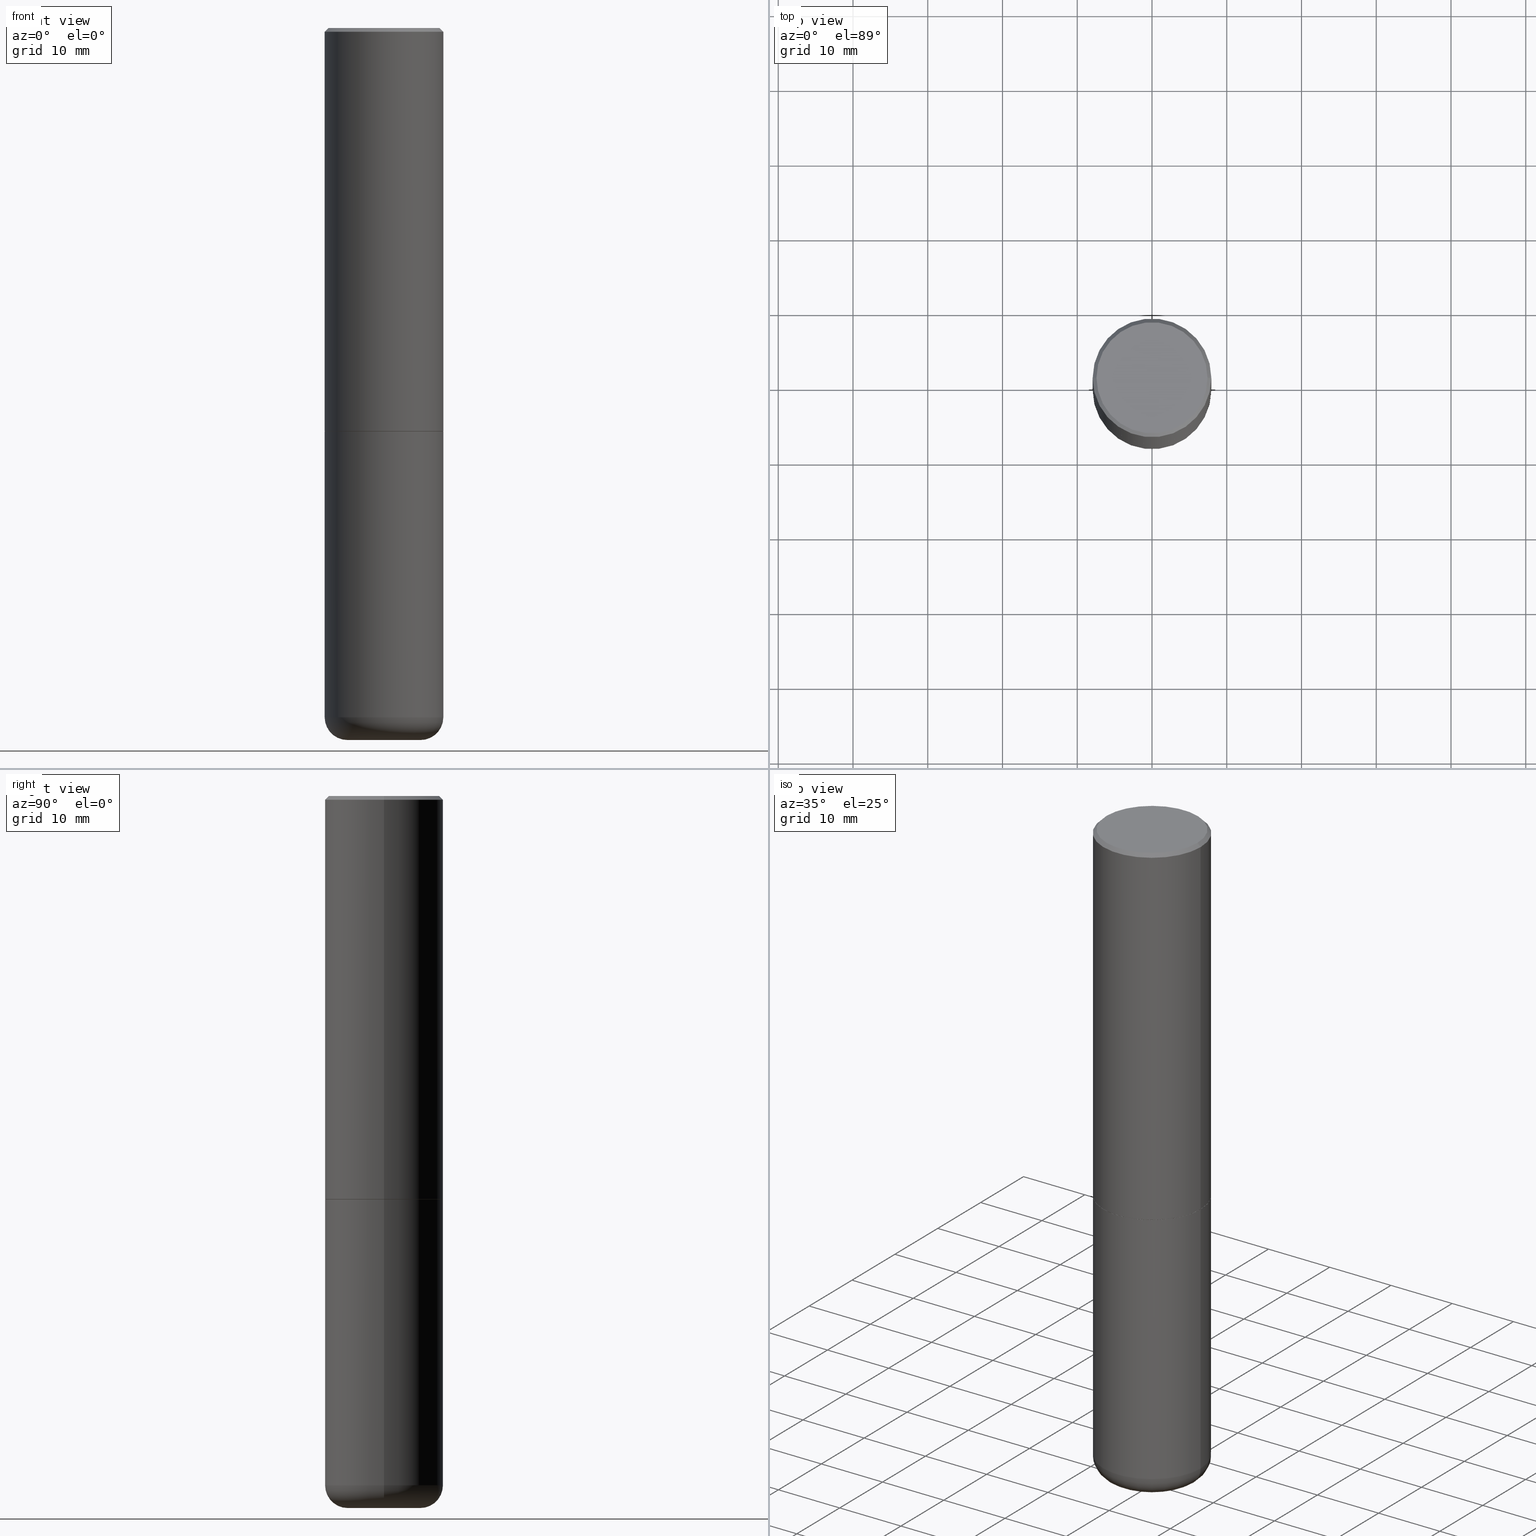
[diagram: canonical four-view strip — front | top / right | iso, engineering-drawing reading convention]
A machine part, canonical four-view strip (front | top / right | iso — engineering-drawing reading convention). The complete STEP part file that produces these views, byte-faithful:
ISO-10303-21;
HEADER;
FILE_DESCRIPTION (( 'STEP AP203' ),
    '1' );
FILE_NAME ('35626.STEP',
    '2022-11-02T20:30:22',
    ( '' ),
    ( '' ),
    'SwSTEP 2.0',
    'SolidWorks 2022',
    '' );
FILE_SCHEMA (( 'CONFIG_CONTROL_DESIGN' ));
ENDSEC;

DATA;
#1 = ORIENTED_EDGE ( 'NONE', *, *, #451, .T. ) ;
#2 = ORIENTED_EDGE ( 'NONE', *, *, #420, .T. ) ;
#3 = CARTESIAN_POINT ( 'NONE',  ( 5.196621213143415268E-29, -7.419397845041685201E-15, -2.125000000000000000 ) ) ;
#4 = AXIS2_PLACEMENT_3D ( 'NONE', #116, #432, #165 ) ;
#5 = ORIENTED_EDGE ( 'NONE', *, *, #96, .T. ) ;
#6 = CIRCLE ( 'NONE', #4, 0.3125000000000000000 ) ;
#7 = APPLICATION_CONTEXT ( 'configuration controlled 3d designs of mechanical parts and assemblies' ) ;
#8 = CARTESIAN_POINT ( 'NONE',  ( 0.000000000000000000, 0.000000000000000000, 0.000000000000000000 ) ) ;
#9 = ORIENTED_EDGE ( 'NONE', *, *, #34, .F. ) ;
#10 = CARTESIAN_POINT ( 'NONE',  ( -0.3125000000000000000, -7.826299479965492348E-15, -2.125000000000000000 ) ) ;
#11 = PLANE ( 'NONE',  #441 ) ;
#12 = CARTESIAN_POINT ( 'NONE',  ( -0.3114999999999999991, -5.206057223148971551E-15, -2.125000000000000000 ) ) ;
#13 = DIRECTION ( 'NONE',  ( -2.445468806185136877E-29, 3.491481338843145188E-15, 1.000000000000000000 ) ) ;
#14 = CARTESIAN_POINT ( 'NONE',  ( 9.169796691556669911E-29, -1.309203942760573274E-14, -3.749709122587949750 ) ) ;
#15 = DIRECTION ( 'NONE',  ( 1.000000000000000000, -6.982962677686266711E-15, 0.000000000000000000 ) ) ;
#16 = EDGE_CURVE ( 'NONE', #28, #37, #324, .T. ) ;
#17 = CARTESIAN_POINT ( 'NONE',  ( 4.890937612370311694E-31, -6.982962677686347076E-17, -0.02000000000000015654 ) ) ;
#18 = ORIENTED_EDGE ( 'NONE', *, *, #85, .T. ) ;
#19 = DIRECTION ( 'NONE',  ( 2.445468806185136597E-29, -3.491481338843145583E-15, -1.000000000000000000 ) ) ;
#20 = CARTESIAN_POINT ( 'NONE',  ( 0.1914528157401960418, -1.442996288751353268E-14, -3.750000000000000000 ) ) ;
#21 = DIRECTION ( 'NONE',  ( -1.000000000000000000, 6.982962677686265922E-15, -4.876176775795935793E-29 ) ) ;
#22 = ADVANCED_FACE ( 'NONE', ( #344 ), #481, .T. ) ;
#23 = CARTESIAN_POINT ( 'NONE',  ( -0.3125000000000000000, -1.522421945989534932E-15, -2.124000000000000110 ) ) ;
#24 = AXIS2_PLACEMENT_3D ( 'NONE', #81, #86, #241 ) ;
#25 = CIRCLE ( 'NONE', #366, 0.1581215657401959795 ) ;
#26 = DIRECTION ( 'NONE',  ( -0.7071067811865481278, 2.468850131082263371E-15, -0.7071067811865469066 ) ) ;
#27 = PERSON_AND_ORGANIZATION ( #110, #402 ) ;
#28 = VERTEX_POINT ( 'NONE', #473 ) ;
#29 = FACE_OUTER_BOUND ( 'NONE', #123, .T. ) ;
#30 = CALENDAR_DATE ( 2022, 2, 11 ) ;
#31 = DIRECTION ( 'NONE',  ( -2.445468806185136597E-29, 3.491481338843145583E-15, 1.000000000000000000 ) ) ;
#32 = ORIENTED_EDGE ( 'NONE', *, *, #57, .F. ) ;
#33 = AXIS2_PLACEMENT_3D ( 'NONE', #367, #31, #476 ) ;
#34 = EDGE_CURVE ( 'NONE', #37, #28, #384, .T. ) ;
#35 = LINE ( 'NONE', #154, #348 ) ;
#36 = ORIENTED_EDGE ( 'NONE', *, *, #420, .F. ) ;
#37 = VERTEX_POINT ( 'NONE', #108 ) ;
#38 = DIRECTION ( 'NONE',  ( -2.445468806185136597E-29, 3.491481338843145583E-15, 1.000000000000000000 ) ) ;
#39 = ORIENTED_EDGE ( 'NONE', *, *, #109, .F. ) ;
#40 = FACE_OUTER_BOUND ( 'NONE', #365, .T. ) ;
#41 = DIRECTION ( 'NONE',  ( -2.445468806185136597E-29, 3.491481338843145583E-15, 1.000000000000000000 ) ) ;
#42 = ORIENTED_EDGE ( 'NONE', *, *, #72, .T. ) ;
#43 = CARTESIAN_POINT ( 'NONE',  ( 0.3125000000000000000, -9.598082200479800541E-15, -2.124000000000000110 ) ) ;
#44 = DIRECTION ( 'NONE',  ( -2.445468806185136597E-29, 3.491481338843145583E-15, 1.000000000000000000 ) ) ;
#45 = FACE_OUTER_BOUND ( 'NONE', #342, .T. ) ;
#46 = PRODUCT_DEFINITION ( 'UNKNOWN', '', #58, #76 ) ;
#47 = FACE_OUTER_BOUND ( 'NONE', #382, .T. ) ;
#48 = CIRCLE ( 'NONE', #416, 0.3125000000000000000 ) ;
#49 = CONICAL_SURFACE ( 'NONE', #114, 0.3114999999999999991, 0.7853981633974141952 ) ;
#50 = CARTESIAN_POINT ( 'NONE',  ( 5.196621213143415268E-29, -7.419397845041685201E-15, -2.125000000000000000 ) ) ;
#51 = LOCAL_TIME ( 16, 30, 22.00000000000000000, #264 ) ;
#52 = ADVANCED_FACE ( 'NONE', ( #29 ), #299, .T. ) ;
#53 = CARTESIAN_POINT ( 'NONE',  ( 0.000000000000000000, 0.000000000000000000, 0.000000000000000000 ) ) ;
#54 = LINE ( 'NONE', #181, #147 ) ;
#55 = DIRECTION ( 'NONE',  ( 0.9999619230641714207, -6.890705306874796929E-15, -0.008726535498360797616 ) ) ;
#56 = LINE ( 'NONE', #254, #125 ) ;
#57 = EDGE_CURVE ( 'NONE', #449, #225, #48, .T. ) ;
#58 = PRODUCT_DEFINITION_FORMATION_WITH_SPECIFIED_SOURCE ( 'ANY', '', #111, .NOT_KNOWN. ) ;
#59 = DIRECTION ( 'NONE',  ( 1.000000000000000000, -6.982962677686265133E-15, 0.000000000000000000 ) ) ;
#60 = CARTESIAN_POINT ( 'NONE',  ( 9.170508023194262238E-29, -1.309305502066179741E-14, -3.750000000000000000 ) ) ;
#61 = LINE ( 'NONE', #226, #93 ) ;
#62 = DIRECTION ( 'NONE',  ( -2.445468806185136597E-29, 3.491481338843145583E-15, 1.000000000000000000 ) ) ;
#63 = AXIS2_PLACEMENT_3D ( 'NONE', #113, #448, #136 ) ;
#64 = APPROVAL_ROLE ( '' ) ;
#65 = AXIS2_PLACEMENT_3D ( 'NONE', #284, #375, #381 ) ;
#66 = EDGE_CURVE ( 'NONE', #491, #373, #294, .T. ) ;
#67 = PERSON_AND_ORGANIZATION ( #110, #402 ) ;
#68 = DATE_AND_TIME ( #306, #387 ) ;
#69 = EDGE_LOOP ( 'NONE', ( #463, #390, #371, #36 ) ) ;
#70 = DATE_TIME_ROLE ( 'classification_date' ) ;
#71 = ORIENTED_EDGE ( 'NONE', *, *, #16, .T. ) ;
#72 = EDGE_CURVE ( 'NONE', #373, #87, #195, .T. ) ;
#73 = AXIS2_PLACEMENT_3D ( 'NONE', #363, #132, #442 ) ;
#74 = AXIS2_PLACEMENT_3D ( 'NONE', #295, #234, #121 ) ;
#75 = COORDINATED_UNIVERSAL_TIME_OFFSET ( 5, 0, .BEHIND. ) ;
#76 = DESIGN_CONTEXT ( 'detailed design', #395, 'design' ) ;
#77 = ORIENTED_EDGE ( 'NONE', *, *, #96, .F. ) ;
#78 = DIRECTION ( 'NONE',  ( 7.105427357601001859E-15, 1.000000000000000000, -3.491481338843145583E-15 ) ) ;
#79 = DIRECTION ( 'NONE',  ( 0.7071067811865232589, -2.468850131082003836E-15, 0.7071067811865715536 ) ) ;
#80 = ORIENTED_EDGE ( 'NONE', *, *, #223, .F. ) ;
#81 = CARTESIAN_POINT ( 'NONE',  ( 4.890937612370311694E-31, -6.982962677686347076E-17, -0.02000000000000015654 ) ) ;
#82 = VERTEX_POINT ( 'NONE', #153 ) ;
#83 = LINE ( 'NONE', #240, #411 ) ;
#84 =( GEOMETRIC_REPRESENTATION_CONTEXT ( 3 ) GLOBAL_UNCERTAINTY_ASSIGNED_CONTEXT ( ( #169 ) ) GLOBAL_UNIT_ASSIGNED_CONTEXT ( ( #478, #251, #249 ) ) REPRESENTATION_CONTEXT ( 'NONE', 'WORKASPACE' ) );
#85 = EDGE_CURVE ( 'NONE', #82, #90, #209, .T. ) ;
#86 = DIRECTION ( 'NONE',  ( 2.445468806185136597E-29, -3.491481338843145583E-15, -1.000000000000000000 ) ) ;
#87 = VERTEX_POINT ( 'NONE', #23 ) ;
#88 = ORIENTED_EDGE ( 'NONE', *, *, #288, .F. ) ;
#89 = CARTESIAN_POINT ( 'NONE',  ( 5.196621213143415268E-29, -7.419397845041685201E-15, -2.125000000000000000 ) ) ;
#90 = VERTEX_POINT ( 'NONE', #20 ) ;
#91 = DIRECTION ( 'NONE',  ( -2.445468806185136597E-29, 3.491481338843145583E-15, 1.000000000000000000 ) ) ;
#92 = ADVANCED_FACE ( 'NONE', ( #177 ), #156, .F. ) ;
#93 = VECTOR ( 'NONE', #26, 39.37007874015748143 ) ;
#94 = AXIS2_PLACEMENT_3D ( 'NONE', #236, #355, #401 ) ;
#95 = DIRECTION ( 'NONE',  ( 1.000000000000000000, -6.982962677686269077E-15, 0.000000000000000000 ) ) ;
#96 = EDGE_CURVE ( 'NONE', #87, #185, #227, .T. ) ;
#97 = DIRECTION ( 'NONE',  ( -2.445468806185136597E-29, 3.491481338843145583E-15, 1.000000000000000000 ) ) ;
#98 = CARTESIAN_POINT ( 'NONE',  ( 0.1914528157401960418, -1.440651667971513390E-14, -3.750000000000000000 ) ) ;
#99 = DIRECTION ( 'NONE',  ( -2.445468806185136597E-29, 3.491481338843145583E-15, 1.000000000000000000 ) ) ;
#100 = CC_DESIGN_PERSON_AND_ORGANIZATION_ASSIGNMENT ( #255, #261, ( #46 ) ) ;
#101 = VECTOR ( 'NONE', #168, 39.37007874015747433 ) ;
#102 = DIRECTION ( 'NONE',  ( 0.000000000000000000, 0.000000000000000000, 1.000000000000000000 ) ) ;
#103 = DATE_AND_TIME ( #386, #372 ) ;
#104 = ORIENTED_EDGE ( 'NONE', *, *, #128, .F. ) ;
#105 = APPROVAL_ROLE ( '' ) ;
#106 = ORIENTED_EDGE ( 'NONE', *, *, #34, .T. ) ;
#107 = CIRCLE ( 'NONE', #33, 0.1914528157401960418 ) ;
#108 = CARTESIAN_POINT ( 'NONE',  ( 0.2924999999999989830, -2.110215457714314014E-15, 4.268512490114932791E-18 ) ) ;
#109 = EDGE_CURVE ( 'NONE', #82, #276, #133, .T. ) ;
#110 = PERSON ( 'UNSPECIFIED', 'UNSPECIFIED', 'UNSPECIFIED', ('UNSPECIFIED'), ('UNSPECIFIED'), ('UNSPECIFIED') ) ;
#111 = PRODUCT ( '35626', '35626', '', ( #216 ) ) ;
#112 = CARTESIAN_POINT ( 'NONE',  ( 2.182175836777010017E-15, 0.3124999999999925615, -2.125000000000001332 ) ) ;
#113 = CARTESIAN_POINT ( 'NONE',  ( 5.196621213143415268E-29, -7.419397845041685201E-15, -2.125000000000000000 ) ) ;
#114 = AXIS2_PLACEMENT_3D ( 'NONE', #50, #427, #118 ) ;
#115 = CIRCLE ( 'NONE', #468, 0.3125000000000000000 ) ;
#116 = CARTESIAN_POINT ( 'NONE',  ( 8.877062940367102659E-29, -1.267409321338992723E-14, -3.630004569232299971 ) ) ;
#117 = EDGE_LOOP ( 'NONE', ( #308, #429, #39 ) ) ;
#118 = DIRECTION ( 'NONE',  ( 1.000000000000000000, -6.982962677686269077E-15, 0.000000000000000000 ) ) ;
#119 = ORIENTED_EDGE ( 'NONE', *, *, #72, .F. ) ;
#120 = ORIENTED_EDGE ( 'NONE', *, *, #182, .F. ) ;
#121 = DIRECTION ( 'NONE',  ( 1.000000000000000000, -6.982962677686269077E-15, 0.000000000000000000 ) ) ;
#122 = CYLINDRICAL_SURFACE ( 'NONE', #325, 0.3124999999999996114 ) ;
#123 = EDGE_LOOP ( 'NONE', ( #414, #270, #197, #392 ) ) ;
#124 = CLOSED_SHELL ( 'NONE', ( #472, #167, #292, #336, #92, #137, #52, #208, #405 ) ) ;
#125 = VECTOR ( 'NONE', #408, 39.37007874015747433 ) ;
#126 = ORIENTED_EDGE ( 'NONE', *, *, #305, .T. ) ;
#127 = FACE_OUTER_BOUND ( 'NONE', #388, .T. ) ;
#128 = EDGE_CURVE ( 'NONE', #90, #161, #107, .T. ) ;
#129 = CARTESIAN_POINT ( 'NONE',  ( 0.3114999999999999991, -9.594590719140957534E-15, -2.125000000000000000 ) ) ;
#130 = CYLINDRICAL_SURFACE ( 'NONE', #475, 0.3125000000000000000 ) ;
#131 = CARTESIAN_POINT ( 'NONE',  ( -1.043851414335219820E-46, 1.490343170380447200E-32, 4.268512490100411279E-18 ) ) ;
#132 = DIRECTION ( 'NONE',  ( -2.445468806185136597E-29, 3.491481338843145583E-15, 1.000000000000000000 ) ) ;
#133 = CIRCLE ( 'NONE', #141, 0.1581215657401959795 ) ;
#134 =( LENGTH_UNIT ( ) NAMED_UNIT ( * ) SI_UNIT ( $, .METRE. ) );
#135 = CONICAL_SURFACE ( 'NONE', #349, 0.1914528157401960418, 1.562069680534938110 ) ;
#136 = DIRECTION ( 'NONE',  ( 1.000000000000000000, -6.982962677686265133E-15, 0.000000000000000000 ) ) ;
#137 = ADVANCED_FACE ( 'NONE', ( #253 ), #11, .F. ) ;
#138 = FACE_OUTER_BOUND ( 'NONE', #425, .T. ) ;
#139 = DIRECTION ( 'NONE',  ( 2.445468806185136597E-29, -3.491481338843145583E-15, -1.000000000000000000 ) ) ;
#140 = CARTESIAN_POINT ( 'NONE',  ( 9.170508023194262238E-29, -1.309305502066179741E-14, -3.750000000000000000 ) ) ;
#141 = AXIS2_PLACEMENT_3D ( 'NONE', #443, #62, #377 ) ;
#142 = APPROVAL_DATE_TIME ( #338, #423 ) ;
#143 = ORIENTED_EDGE ( 'NONE', *, *, #220, .T. ) ;
#144 = EDGE_CURVE ( 'NONE', #225, #449, #417, .T. ) ;
#145 = COORDINATED_UNIVERSAL_TIME_OFFSET ( 5, 0, .BEHIND. ) ;
#146 = EDGE_LOOP ( 'NONE', ( #206, #5, #2, #272 ) ) ;
#147 = VECTOR ( 'NONE', #326, 39.37007874015748143 ) ;
#148 = EDGE_CURVE ( 'NONE', #491, #185, #219, .T. ) ;
#149 = DATE_AND_TIME ( #30, #186 ) ;
#150 = EDGE_CURVE ( 'NONE', #276, #82, #25, .T. ) ;
#151 = PRODUCT_DEFINITION_SHAPE ( 'NONE', 'NONE',  #46 ) ;
#152 = EDGE_LOOP ( 'NONE', ( #278, #486, #235, #104 ) ) ;
#153 = CARTESIAN_POINT ( 'NONE',  ( 0.1581215657401959795, -1.417683211277084560E-14, -3.749709122587949750 ) ) ;
#154 = CARTESIAN_POINT ( 'NONE',  ( -0.1914528157401960418, -1.175614715381006215E-14, -3.750000000000000000 ) ) ;
#155 = CARTESIAN_POINT ( 'NONE',  ( -0.1925000000000002265, -1.130629844705173198E-14, -3.630004569232299971 ) ) ;
#156 = CONICAL_SURFACE ( 'NONE', #212, 0.1581215657401959795, 1.535889741755008808 ) ;
#157 = ORIENTED_EDGE ( 'NONE', *, *, #268, .F. ) ;
#158 = LINE ( 'NONE', #393, #244 ) ;
#159 = CC_DESIGN_DATE_AND_TIME_ASSIGNMENT ( #103, #70, ( #304 ) ) ;
#160 = DIRECTION ( 'NONE',  ( -2.445468806185136597E-29, 3.491481338843145583E-15, 1.000000000000000000 ) ) ;
#161 = VERTEX_POINT ( 'NONE', #360 ) ;
#162 = LINE ( 'NONE', #238, #101 ) ;
#163 = CARTESIAN_POINT ( 'NONE',  ( 0.3125000000000000000, -1.485626905016688558E-14, -3.630004569232299971 ) ) ;
#164 = ORIENTED_EDGE ( 'NONE', *, *, #187, .F. ) ;
#165 = DIRECTION ( 'NONE',  ( 1.000000000000000000, -6.982962677686269077E-15, 0.000000000000000000 ) ) ;
#166 = CIRCLE ( 'NONE', #483, 0.3124999999999991673 ) ;
#167 = ADVANCED_FACE ( 'NONE', ( #213 ), #482, .T. ) ;
#168 = DIRECTION ( 'NONE',  ( 0.9993908270190957621, -6.978169709227547010E-15, -0.03489949670250219738 ) ) ;
#169 = UNCERTAINTY_MEASURE_WITH_UNIT (LENGTH_MEASURE( 1.000000000000000082E-05 ), #478, 'distance_accuracy_value', 'NONE');
#170 = APPLICATION_PROTOCOL_DEFINITION ( 'international standard', 'config_control_design', 1994, #7 ) ;
#171 = CARTESIAN_POINT ( 'NONE',  ( 0.3125000000000000000, -9.601573681818641971E-15, -2.125000000000000000 ) ) ;
#172 = DIRECTION ( 'NONE',  ( -2.445468806185136597E-29, 3.491481338843145583E-15, 1.000000000000000000 ) ) ;
#173 = VECTOR ( 'NONE', #55, 39.37007874015748143 ) ;
#174 = EDGE_CURVE ( 'NONE', #276, #161, #35, .T. ) ;
#175 = VECTOR ( 'NONE', #246, 39.37007874015748143 ) ;
#176 = CARTESIAN_POINT ( 'NONE',  ( 5.196621213143415268E-29, -7.419397845041685201E-15, -2.125000000000000000 ) ) ;
#177 = FACE_OUTER_BOUND ( 'NONE', #117, .T. ) ;
#178 = DIRECTION ( 'NONE',  ( 1.000000000000000000, -6.982962677686265133E-15, 0.000000000000000000 ) ) ;
#179 = MANIFOLD_SOLID_BREP ( 'Body-Move/Copy2[1]', #124 ) ;
#180 = DIRECTION ( 'NONE',  ( 1.000000000000000000, -6.982962677686266711E-15, 4.876176775795936353E-29 ) ) ;
#181 = CARTESIAN_POINT ( 'NONE',  ( -0.3124999999999996114, 2.220446049250310320E-15, -1.537167215704655990E-29 ) ) ;
#182 = EDGE_CURVE ( 'NONE', #199, #449, #83, .T. ) ;
#183 = APPROVAL_DATE_TIME ( #68, #439 ) ;
#184 = TOROIDAL_SURFACE ( 'NONE', #267, 0.1925000000000002265, 0.1199999999999997735 ) ;
#185 = VERTEX_POINT ( 'NONE', #43 ) ;
#186 = LOCAL_TIME ( 16, 30, 22.00000000000000000, #75 ) ;
#187 = EDGE_CURVE ( 'NONE', #28, #194, #61, .T. ) ;
#188 = PERSON_AND_ORGANIZATION_ROLE ( 'creator' ) ;
#189 = ORIENTED_EDGE ( 'NONE', *, *, #150, .F. ) ;
#190 = CARTESIAN_POINT ( 'NONE',  ( 5.194175744337230786E-29, -7.415906363702842194E-15, -2.124000000000000110 ) ) ;
#191 = CLOSED_SHELL ( 'NONE', ( #22, #341, #354, #362, #283, #259, #364, #404 ) ) ;
#192 = ORIENTED_EDGE ( 'NONE', *, *, #248, .T. ) ;
#193 = AXIS2_PLACEMENT_3D ( 'NONE', #480, #361, #21 ) ;
#194 = VERTEX_POINT ( 'NONE', #247 ) ;
#195 = LINE ( 'NONE', #12, #368 ) ;
#196 = DIRECTION ( 'NONE',  ( 1.000000000000000000, -6.982962677686266711E-15, 4.876067333457706292E-29 ) ) ;
#197 = ORIENTED_EDGE ( 'NONE', *, *, #182, .T. ) ;
#198 = CC_DESIGN_PERSON_AND_ORGANIZATION_ASSIGNMENT ( #228, #489, ( #111 ) ) ;
#199 = VERTEX_POINT ( 'NONE', #163 ) ;
#200 = FACE_OUTER_BOUND ( 'NONE', #69, .T. ) ;
#201 = AXIS2_PLACEMENT_3D ( 'NONE', #358, #91, #281 ) ;
#202 = DIMENSIONAL_EXPONENTS ( 1.000000000000000000, 0.000000000000000000, 0.000000000000000000, 0.000000000000000000, 0.000000000000000000, 0.000000000000000000, 0.000000000000000000 ) ;
#203 = ORIENTED_EDGE ( 'NONE', *, *, #144, .T. ) ;
#204 = APPROVAL_PERSON_ORGANIZATION ( #300, #316, #105 ) ;
#205 = DIRECTION ( 'NONE',  ( -2.445468806185136597E-29, 3.491481338843145583E-15, 1.000000000000000000 ) ) ;
#206 = ORIENTED_EDGE ( 'NONE', *, *, #479, .F. ) ;
#207 = CARTESIAN_POINT ( 'NONE',  ( 4.890937612370311694E-31, -6.982962677686347076E-17, -0.02000000000000015654 ) ) ;
#208 = ADVANCED_FACE ( 'NONE', ( #428 ), #184, .T. ) ;
#209 = LINE ( 'NONE', #98, #173 ) ;
#210 = DIRECTION ( 'NONE',  ( 1.000000000000000000, -6.982962677686265922E-15, 4.876176775795935793E-29 ) ) ;
#211 = AXIS2_PLACEMENT_3D ( 'NONE', #53, #172, #180 ) ;
#212 = AXIS2_PLACEMENT_3D ( 'NONE', #328, #139, #380 ) ;
#213 = FACE_OUTER_BOUND ( 'NONE', #376, .T. ) ;
#214 = FACE_OUTER_BOUND ( 'NONE', #146, .T. ) ;
#215 = DIRECTION ( 'NONE',  ( 1.000000000000000000, -6.982962677686265133E-15, 0.000000000000000000 ) ) ;
#216 = MECHANICAL_CONTEXT ( 'NONE', #7, 'mechanical' ) ;
#217 = CIRCLE ( 'NONE', #303, 0.1199999999999997735 ) ;
#218 = PLANE ( 'NONE',  #193 ) ;
#219 = LINE ( 'NONE', #129, #330 ) ;
#220 = EDGE_CURVE ( 'NONE', #339, #194, #311, .T. ) ;
#221 = ADVANCED_BREP_SHAPE_REPRESENTATION ( '35626', ( #179, #337, #269 ), #84 ) ;
#222 = DIRECTION ( 'NONE',  ( -1.000000000000000000, 6.982962677686269077E-15, 0.000000000000000000 ) ) ;
#223 = EDGE_CURVE ( 'NONE', #37, #339, #158, .T. ) ;
#224 = DIRECTION ( 'NONE',  ( 1.000000000000000000, 0.000000000000000000, 0.000000000000000000 ) ) ;
#225 = VERTEX_POINT ( 'NONE', #10 ) ;
#226 = CARTESIAN_POINT ( 'NONE',  ( -0.3124999999999991673, 2.112346210000089132E-15, -0.02000000000000015654 ) ) ;
#227 = CIRCLE ( 'NONE', #245, 0.3125000000000000000 ) ;
#228 = PERSON_AND_ORGANIZATION ( #110, #402 ) ;
#229 = VECTOR ( 'NONE', #13, 39.37007874015748143 ) ;
#230 = VERTEX_POINT ( 'NONE', #313 ) ;
#231 = APPROVAL_STATUS ( 'not_yet_approved' ) ;
#232 = DATE_AND_TIME ( #447, #51 ) ;
#233 = ORIENTED_EDGE ( 'NONE', *, *, #128, .T. ) ;
#234 = DIRECTION ( 'NONE',  ( -2.445468806185136597E-29, 3.491481338843145583E-15, 1.000000000000000000 ) ) ;
#235 = ORIENTED_EDGE ( 'NONE', *, *, #174, .T. ) ;
#236 = CARTESIAN_POINT ( 'NONE',  ( 5.196621213143415268E-29, -7.419397845041685201E-15, -2.125000000000000000 ) ) ;
#237 = ORIENTED_EDGE ( 'NONE', *, *, #302, .T. ) ;
#238 = CARTESIAN_POINT ( 'NONE',  ( 0.1581215657401959795, -1.417683211277084560E-14, -3.749709122587949750 ) ) ;
#239 = ORIENTED_EDGE ( 'NONE', *, *, #451, .F. ) ;
#240 = CARTESIAN_POINT ( 'NONE',  ( 0.3125000000000000000, -2.182175836776958347E-15, 1.523805242436230075E-29 ) ) ;
#241 = DIRECTION ( 'NONE',  ( -1.000000000000000000, 6.982962677686267499E-15, 0.000000000000000000 ) ) ;
#242 = DIRECTION ( 'NONE',  ( 1.000000000000000000, -6.982962677686266711E-15, 4.876176775795936353E-29 ) ) ;
#243 = DIRECTION ( 'NONE',  ( 1.000000000000000000, -6.982962677686266711E-15, 4.876176775795935232E-29 ) ) ;
#244 = VECTOR ( 'NONE', #459, 39.37007874015748143 ) ;
#245 = AXIS2_PLACEMENT_3D ( 'NONE', #190, #44, #431 ) ;
#246 = DIRECTION ( 'NONE',  ( -2.445468806185136877E-29, 3.491481338843145188E-15, 1.000000000000000000 ) ) ;
#247 = CARTESIAN_POINT ( 'NONE',  ( -0.3124999999999991673, 2.112346210000089132E-15, -0.02000000000000015654 ) ) ;
#248 = EDGE_CURVE ( 'NONE', #461, #225, #424, .T. ) ;
#249 =( NAMED_UNIT ( * ) SI_UNIT ( $, .STERADIAN. ) SOLID_ANGLE_UNIT ( ) );
#250 = CIRCLE ( 'NONE', #434, 0.3125000000000000000 ) ;
#251 =( NAMED_UNIT ( * ) PLANE_ANGLE_UNIT ( ) SI_UNIT ( $, .RADIAN. ) );
#252 = CC_DESIGN_APPROVAL ( #439, ( #46 ) ) ;
#253 = FACE_OUTER_BOUND ( 'NONE', #457, .T. ) ;
#254 = CARTESIAN_POINT ( 'NONE',  ( -0.1581215657401959795, -1.198788243550462783E-14, -3.749709122587949750 ) ) ;
#255 = PERSON_AND_ORGANIZATION ( #110, #402 ) ;
#256 = ORIENTED_EDGE ( 'NONE', *, *, #419, .F. ) ;
#257 = APPROVAL_DATE_TIME ( #149, #316 ) ;
#258 = AXIS2_PLACEMENT_3D ( 'NONE', #14, #347, #315 ) ;
#259 = ADVANCED_FACE ( 'NONE', ( #40 ), #49, .T. ) ;
#260 = EDGE_LOOP ( 'NONE', ( #262, #335, #1, #312 ) ) ;
#261 = PERSON_AND_ORGANIZATION_ROLE ( 'creator' ) ;
#262 = ORIENTED_EDGE ( 'NONE', *, *, #302, .F. ) ;
#263 = CARTESIAN_POINT ( 'NONE',  ( 9.169796691556669911E-29, -1.309203942760573274E-14, -3.749709122587949750 ) ) ;
#264 = COORDINATED_UNIVERSAL_TIME_OFFSET ( 5, 0, .BEHIND. ) ;
#265 = AXIS2_PLACEMENT_3D ( 'NONE', #3, #160, #389 ) ;
#266 = ORIENTED_EDGE ( 'NONE', *, *, #187, .T. ) ;
#267 = AXIS2_PLACEMENT_3D ( 'NONE', #287, #41, #470 ) ;
#268 = EDGE_CURVE ( 'NONE', #199, #461, #6, .T. ) ;
#269 = AXIS2_PLACEMENT_3D ( 'NONE', #477, #102, #224 ) ;
#270 = ORIENTED_EDGE ( 'NONE', *, *, #322, .T. ) ;
#271 = CYLINDRICAL_SURFACE ( 'NONE', #319, 0.3124999999999996114 ) ;
#272 = ORIENTED_EDGE ( 'NONE', *, *, #413, .F. ) ;
#273 = DIRECTION ( 'NONE',  ( -2.445468806185136597E-29, 3.491481338843145583E-15, 1.000000000000000000 ) ) ;
#274 = ORIENTED_EDGE ( 'NONE', *, *, #66, .T. ) ;
#275 = DIRECTION ( 'NONE',  ( -1.000000000000000000, 7.105427357601005014E-15, 0.000000000000000000 ) ) ;
#276 = VERTEX_POINT ( 'NONE', #422 ) ;
#277 = AXIS2_PLACEMENT_3D ( 'NONE', #60, #99, #95 ) ;
#278 = ORIENTED_EDGE ( 'NONE', *, *, #85, .F. ) ;
#279 = PRODUCT_RELATED_PRODUCT_CATEGORY ( 'detail', '', ( #111 ) ) ;
#280 = DIRECTION ( 'NONE',  ( 2.445468806185136597E-29, -3.491481338843145583E-15, -1.000000000000000000 ) ) ;
#281 = DIRECTION ( 'NONE',  ( 1.000000000000000000, -6.982962677686266711E-15, 0.000000000000000000 ) ) ;
#282 = ORIENTED_EDGE ( 'NONE', *, *, #455, .F. ) ;
#283 = ADVANCED_FACE ( 'NONE', ( #214 ), #271, .T. ) ;
#284 = CARTESIAN_POINT ( 'NONE',  ( 8.877062940367102659E-29, -1.267409321338992723E-14, -3.630004569232299971 ) ) ;
#285 = DIRECTION ( 'NONE',  ( -1.000000000000000000, 6.982962677686269077E-15, 0.000000000000000000 ) ) ;
#286 = CIRCLE ( 'NONE', #458, 0.1199999999999997735 ) ;
#287 = CARTESIAN_POINT ( 'NONE',  ( 8.877062940367102659E-29, -1.267409321338992723E-14, -3.630004569232299971 ) ) ;
#288 = EDGE_CURVE ( 'NONE', #373, #491, #394, .T. ) ;
#289 = CONICAL_SURFACE ( 'NONE', #258, 0.1581215657401959795, 1.535889741755008808 ) ;
#290 = CARTESIAN_POINT ( 'NONE',  ( 0.1925000000000002265, -1.401831352884453547E-14, -3.630004569232299971 ) ) ;
#291 = DIRECTION ( 'NONE',  ( -2.445468806185136597E-29, 3.491481338843145583E-15, 1.000000000000000000 ) ) ;
#292 = ADVANCED_FACE ( 'NONE', ( #47 ), #130, .T. ) ;
#293 = CARTESIAN_POINT ( 'NONE',  ( 5.194175744337230786E-29, -7.415906363702842194E-15, -2.124000000000000110 ) ) ;
#294 = CIRCLE ( 'NONE', #74, 0.3114999999999999991 ) ;
#295 = CARTESIAN_POINT ( 'NONE',  ( 5.196621213143415268E-29, -7.419397845041685201E-15, -2.125000000000000000 ) ) ;
#296 = DIRECTION ( 'NONE',  ( 2.445468806185136597E-29, -3.491481338843145583E-15, -1.000000000000000000 ) ) ;
#297 = PERSON_AND_ORGANIZATION_ROLE ( 'design_supplier' ) ;
#298 = ORIENTED_EDGE ( 'NONE', *, *, #223, .T. ) ;
#299 = CYLINDRICAL_SURFACE ( 'NONE', #211, 0.3125000000000000000 ) ;
#300 = PERSON_AND_ORGANIZATION ( #110, #402 ) ;
#301 = ORIENTED_EDGE ( 'NONE', *, *, #16, .F. ) ;
#302 = EDGE_CURVE ( 'NONE', #161, #461, #286, .T. ) ;
#303 = AXIS2_PLACEMENT_3D ( 'NONE', #290, #474, #215 ) ;
#304 = SECURITY_CLASSIFICATION ( '', '', #331 ) ;
#305 = EDGE_CURVE ( 'NONE', #230, #82, #162, .T. ) ;
#306 = CALENDAR_DATE ( 2022, 2, 11 ) ;
#307 = ORIENTED_EDGE ( 'NONE', *, *, #268, .T. ) ;
#308 = ORIENTED_EDGE ( 'NONE', *, *, #305, .F. ) ;
#309 = DIRECTION ( 'NONE',  ( -0.9999619230641714207, 6.952228252019216578E-15, -0.008726535498360797616 ) ) ;
#310 = DIRECTION ( 'NONE',  ( -2.445468806185136597E-29, 3.491481338843145583E-15, 1.000000000000000000 ) ) ;
#311 = CIRCLE ( 'NONE', #201, 0.3124999999999991673 ) ;
#312 = ORIENTED_EDGE ( 'NONE', *, *, #322, .F. ) ;
#313 = CARTESIAN_POINT ( 'NONE',  ( 9.156293481035985549E-29, -1.307276042170379891E-14, -3.744187395839062127 ) ) ;
#314 = ORIENTED_EDGE ( 'NONE', *, *, #413, .T. ) ;
#315 = DIRECTION ( 'NONE',  ( -1.000000000000000000, 6.982962677686273021E-15, 0.000000000000000000 ) ) ;
#316 = APPROVAL ( #445, 'UNSPECIFIED' ) ;
#317 = ORIENTED_EDGE ( 'NONE', *, *, #66, .F. ) ;
#318 = FACE_OUTER_BOUND ( 'NONE', #415, .T. ) ;
#319 = AXIS2_PLACEMENT_3D ( 'NONE', #469, #205, #243 ) ;
#320 = ORIENTED_EDGE ( 'NONE', *, *, #174, .F. ) ;
#321 = FACE_OUTER_BOUND ( 'NONE', #436, .T. ) ;
#322 = EDGE_CURVE ( 'NONE', #461, #199, #250, .T. ) ;
#323 = LENGTH_MEASURE_WITH_UNIT ( LENGTH_MEASURE( 0.02539999999999999897 ), #134 );
#324 = CIRCLE ( 'NONE', #466, 0.2924999999999989830 ) ;
#325 = AXIS2_PLACEMENT_3D ( 'NONE', #8, #273, #352 ) ;
#326 = DIRECTION ( 'NONE',  ( -2.445468806185136877E-29, 3.491481338843145188E-15, 1.000000000000000000 ) ) ;
#327 = LOCAL_TIME ( 16, 30, 22.00000000000000000, #145 ) ;
#328 = CARTESIAN_POINT ( 'NONE',  ( 9.169796691556669911E-29, -1.309203942760573274E-14, -3.749709122587949750 ) ) ;
#329 = CARTESIAN_POINT ( 'NONE',  ( 0.3114999999999999991, -9.594590719140957534E-15, -2.125000000000000000 ) ) ;
#330 = VECTOR ( 'NONE', #79, 39.37007874015748854 ) ;
#331 = SECURITY_CLASSIFICATION_LEVEL ( 'unclassified' ) ;
#332 = ORIENTED_EDGE ( 'NONE', *, *, #288, .T. ) ;
#333 = CC_DESIGN_APPROVAL ( #423, ( #58 ) ) ;
#334 = COORDINATED_UNIVERSAL_TIME_OFFSET ( 5, 0, .BEHIND. ) ;
#335 = ORIENTED_EDGE ( 'NONE', *, *, #419, .T. ) ;
#336 = ADVANCED_FACE ( 'NONE', ( #318 ), #289, .F. ) ;
#337 = MANIFOLD_SOLID_BREP ( 'Body-Move/Copy2[2]', #191 ) ;
#338 = DATE_AND_TIME ( #379, #327 ) ;
#339 = VERTEX_POINT ( 'NONE', #464 ) ;
#340 = APPROVAL_PERSON_ORGANIZATION ( #452, #423, #412 ) ;
#341 = ADVANCED_FACE ( 'NONE', ( #200 ), #122, .T. ) ;
#342 = EDGE_LOOP ( 'NONE', ( #80, #301, #266, #314 ) ) ;
#343 = EDGE_LOOP ( 'NONE', ( #71, #106 ) ) ;
#344 = FACE_OUTER_BOUND ( 'NONE', #346, .T. ) ;
#345 = AXIS2_PLACEMENT_3D ( 'NONE', #89, #399, #210 ) ;
#346 = EDGE_LOOP ( 'NONE', ( #274, #42, #282, #396 ) ) ;
#347 = DIRECTION ( 'NONE',  ( 2.445468806185136597E-29, -3.491481338843145583E-15, -1.000000000000000000 ) ) ;
#348 = VECTOR ( 'NONE', #309, 39.37007874015748143 ) ;
#349 = AXIS2_PLACEMENT_3D ( 'NONE', #435, #19, #285 ) ;
#350 = CARTESIAN_POINT ( 'NONE',  ( 0.000000000000000000, 0.000000000000000000, 0.000000000000000000 ) ) ;
#351 = ORIENTED_EDGE ( 'NONE', *, *, #150, .T. ) ;
#352 = DIRECTION ( 'NONE',  ( 1.000000000000000000, -6.982962677686266711E-15, 4.876176775795935232E-29 ) ) ;
#353 = CARTESIAN_POINT ( 'NONE',  ( -0.3114999999999999991, -5.200758768800749938E-15, -2.125000000000000000 ) ) ;
#354 = ADVANCED_FACE ( 'NONE', ( #321 ), #446, .T. ) ;
#355 = DIRECTION ( 'NONE',  ( -2.445468806185136597E-29, 3.491481338843145583E-15, 1.000000000000000000 ) ) ;
#356 = ORIENTED_EDGE ( 'NONE', *, *, #383, .F. ) ;
#357 = CARTESIAN_POINT ( 'NONE',  ( 0.3124999999999996114, -2.182175836776955586E-15, 1.523805242436227833E-29 ) ) ;
#358 = CARTESIAN_POINT ( 'NONE',  ( 4.890937612370311694E-31, -6.982962677686347076E-17, -0.02000000000000015654 ) ) ;
#359 = CONICAL_SURFACE ( 'NONE', #488, 0.1914528157401960418, 1.562069680534938110 ) ;
#360 = CARTESIAN_POINT ( 'NONE',  ( -0.1914528157401960418, -1.109317405507563798E-14, -3.750000000000000000 ) ) ;
#361 = DIRECTION ( 'NONE',  ( 2.438088387897960049E-29, -3.491481338843145188E-15, -1.000000000000000000 ) ) ;
#362 = ADVANCED_FACE ( 'NONE', ( #45 ), #385, .T. ) ;
#363 = CARTESIAN_POINT ( 'NONE',  ( -1.043851414335219820E-46, 1.490343170380447200E-32, 4.268512490100411279E-18 ) ) ;
#364 = ADVANCED_FACE ( 'NONE', ( #127 ), #430, .F. ) ;
#365 = EDGE_LOOP ( 'NONE', ( #119, #332, #453, #77 ) ) ;
#366 = AXIS2_PLACEMENT_3D ( 'NONE', #263, #454, #378 ) ;
#367 = CARTESIAN_POINT ( 'NONE',  ( 9.170508023194262238E-29, -1.309305502066179741E-14, -3.750000000000000000 ) ) ;
#368 = VECTOR ( 'NONE', #426, 39.37007874015748854 ) ;
#369 = CC_DESIGN_PERSON_AND_ORGANIZATION_ASSIGNMENT ( #27, #188, ( #58 ) ) ;
#370 = DATE_TIME_ROLE ( 'creation_date' ) ;
#371 = ORIENTED_EDGE ( 'NONE', *, *, #220, .F. ) ;
#372 = LOCAL_TIME ( 16, 30, 22.00000000000000000, #418 ) ;
#373 = VERTEX_POINT ( 'NONE', #353 ) ;
#374 = SHAPE_DEFINITION_REPRESENTATION ( #151, #221 ) ;
#375 = DIRECTION ( 'NONE',  ( -2.445468806185136597E-29, 3.491481338843145583E-15, 1.000000000000000000 ) ) ;
#376 = EDGE_LOOP ( 'NONE', ( #233, #237, #157, #239 ) ) ;
#377 = DIRECTION ( 'NONE',  ( 1.000000000000000000, -6.982962677686273021E-15, 0.000000000000000000 ) ) ;
#378 = DIRECTION ( 'NONE',  ( 1.000000000000000000, -6.982962677686273021E-15, 0.000000000000000000 ) ) ;
#379 = CALENDAR_DATE ( 2022, 2, 11 ) ;
#380 = DIRECTION ( 'NONE',  ( -1.000000000000000000, 6.982962677686273021E-15, 0.000000000000000000 ) ) ;
#381 = DIRECTION ( 'NONE',  ( 1.000000000000000000, -6.982962677686269077E-15, 4.883557194083114022E-29 ) ) ;
#382 = EDGE_LOOP ( 'NONE', ( #307, #192, #32, #120 ) ) ;
#383 = EDGE_CURVE ( 'NONE', #230, #276, #56, .T. ) ;
#384 = CIRCLE ( 'NONE', #73, 0.2924999999999989830 ) ;
#385 = CONICAL_SURFACE ( 'NONE', #407, 0.3124999999999991673, 0.7853981633974491672 ) ;
#386 = CALENDAR_DATE ( 2022, 2, 11 ) ;
#387 = LOCAL_TIME ( 16, 30, 22.00000000000000000, #334 ) ;
#388 = EDGE_LOOP ( 'NONE', ( #317, #88 ) ) ;
#389 = DIRECTION ( 'NONE',  ( 1.000000000000000000, -6.982962677686269077E-15, 0.000000000000000000 ) ) ;
#390 = ORIENTED_EDGE ( 'NONE', *, *, #479, .T. ) ;
#391 = CARTESIAN_POINT ( 'NONE',  ( 8.877062940367102659E-29, -1.267409321338992723E-14, -3.630004569232299971 ) ) ;
#392 = ORIENTED_EDGE ( 'NONE', *, *, #144, .F. ) ;
#393 = CARTESIAN_POINT ( 'NONE',  ( 0.3124999999999991673, -2.213735251080461389E-15, -0.02000000000000015654 ) ) ;
#394 = CIRCLE ( 'NONE', #94, 0.3114999999999999991 ) ;
#395 = APPLICATION_CONTEXT ( 'configuration controlled 3d designs of mechanical parts and assemblies' ) ;
#396 = ORIENTED_EDGE ( 'NONE', *, *, #148, .F. ) ;
#397 = DIRECTION ( 'NONE',  ( -2.445468806185136877E-29, 3.491481338843145188E-15, 1.000000000000000000 ) ) ;
#398 = CARTESIAN_POINT ( 'NONE',  ( -0.3125000000000000000, 2.220446049250313081E-15, -1.537167215704658232E-29 ) ) ;
#399 = DIRECTION ( 'NONE',  ( -2.438088387897960049E-29, 3.491481338843145188E-15, 1.000000000000000000 ) ) ;
#400 = CC_DESIGN_PERSON_AND_ORGANIZATION_ASSIGNMENT ( #67, #297, ( #58 ) ) ;
#401 = DIRECTION ( 'NONE',  ( 1.000000000000000000, -6.982962677686269077E-15, 0.000000000000000000 ) ) ;
#402 = ORGANIZATION ( 'UNSPECIFIED', 'UNSPECIFIED', '' ) ;
#403 = LINE ( 'NONE', #357, #175 ) ;
#404 = ADVANCED_FACE ( 'NONE', ( #406 ), #218, .F. ) ;
#405 = ADVANCED_FACE ( 'NONE', ( #438 ), #359, .F. ) ;
#406 = FACE_OUTER_BOUND ( 'NONE', #343, .T. ) ;
#407 = AXIS2_PLACEMENT_3D ( 'NONE', #207, #280, #467 ) ;
#408 = DIRECTION ( 'NONE',  ( -0.9993908270190957621, 6.856857904024552526E-15, -0.03489949670250219738 ) ) ;
#409 = CC_DESIGN_DATE_AND_TIME_ASSIGNMENT ( #232, #370, ( #46 ) ) ;
#410 = PERSON_AND_ORGANIZATION ( #110, #402 ) ;
#411 = VECTOR ( 'NONE', #397, 39.37007874015748143 ) ;
#412 = APPROVAL_ROLE ( '' ) ;
#413 = EDGE_CURVE ( 'NONE', #194, #339, #166, .T. ) ;
#414 = ORIENTED_EDGE ( 'NONE', *, *, #248, .F. ) ;
#415 = EDGE_LOOP ( 'NONE', ( #356, #126, #189 ) ) ;
#416 = AXIS2_PLACEMENT_3D ( 'NONE', #176, #291, #59 ) ;
#417 = CIRCLE ( 'NONE', #63, 0.3125000000000000000 ) ;
#418 = COORDINATED_UNIVERSAL_TIME_OFFSET ( 5, 0, .BEHIND. ) ;
#419 = EDGE_CURVE ( 'NONE', #161, #90, #437, .T. ) ;
#420 = EDGE_CURVE ( 'NONE', #185, #339, #403, .T. ) ;
#421 = ORIENTED_EDGE ( 'NONE', *, *, #57, .T. ) ;
#422 = CARTESIAN_POINT ( 'NONE',  ( -0.1581215657401959795, -1.198788243550462783E-14, -3.749709122587949750 ) ) ;
#423 = APPROVAL ( #231, 'UNSPECIFIED' ) ;
#424 = LINE ( 'NONE', #398, #229 ) ;
#425 = EDGE_LOOP ( 'NONE', ( #351, #18, #256, #320 ) ) ;
#426 = DIRECTION ( 'NONE',  ( -0.7071067811865232589, 7.493145998870265808E-15, 0.7071067811865715536 ) ) ;
#427 = DIRECTION ( 'NONE',  ( -2.445468806185136597E-29, 3.491481338843145583E-15, 1.000000000000000000 ) ) ;
#428 = FACE_OUTER_BOUND ( 'NONE', #260, .T. ) ;
#429 = ORIENTED_EDGE ( 'NONE', *, *, #383, .T. ) ;
#430 = PLANE ( 'NONE',  #345 ) ;
#431 = DIRECTION ( 'NONE',  ( 1.000000000000000000, -6.982962677686265133E-15, 0.000000000000000000 ) ) ;
#432 = DIRECTION ( 'NONE',  ( -2.445468806185136597E-29, 3.491481338843145583E-15, 1.000000000000000000 ) ) ;
#433 = DIRECTION ( 'NONE',  ( -2.445468806185136597E-29, 3.491481338843145583E-15, 1.000000000000000000 ) ) ;
#434 = AXIS2_PLACEMENT_3D ( 'NONE', #391, #38, #462 ) ;
#435 = CARTESIAN_POINT ( 'NONE',  ( 9.170508023194262238E-29, -1.309305502066179741E-14, -3.750000000000000000 ) ) ;
#436 = EDGE_LOOP ( 'NONE', ( #9, #298, #143, #164 ) ) ;
#437 = CIRCLE ( 'NONE', #277, 0.1914528157401960418 ) ;
#438 = FACE_OUTER_BOUND ( 'NONE', #152, .T. ) ;
#439 = APPROVAL ( #484, 'UNSPECIFIED' ) ;
#440 = DIRECTION ( 'NONE',  ( -2.445468806185136597E-29, 3.491481338843145583E-15, 1.000000000000000000 ) ) ;
#441 = AXIS2_PLACEMENT_3D ( 'NONE', #112, #456, #490 ) ;
#442 = DIRECTION ( 'NONE',  ( 1.000000000000000000, -6.982962677686266711E-15, 4.876067333457706292E-29 ) ) ;
#443 = CARTESIAN_POINT ( 'NONE',  ( 9.169796691556669911E-29, -1.309203942760573274E-14, -3.749709122587949750 ) ) ;
#444 = APPLICATION_PROTOCOL_DEFINITION ( 'international standard', 'config_control_design', 1994, #395 ) ;
#445 = APPROVAL_STATUS ( 'not_yet_approved' ) ;
#446 = CONICAL_SURFACE ( 'NONE', #24, 0.3124999999999991673, 0.7853981633974491672 ) ;
#447 = CALENDAR_DATE ( 2022, 2, 11 ) ;
#448 = DIRECTION ( 'NONE',  ( -2.445468806185136597E-29, 3.491481338843145583E-15, 1.000000000000000000 ) ) ;
#449 = VERTEX_POINT ( 'NONE', #171 ) ;
#450 = CC_DESIGN_SECURITY_CLASSIFICATION ( #304, ( #58 ) ) ;
#451 = EDGE_CURVE ( 'NONE', #90, #199, #217, .T. ) ;
#452 = PERSON_AND_ORGANIZATION ( #110, #402 ) ;
#453 = ORIENTED_EDGE ( 'NONE', *, *, #148, .T. ) ;
#454 = DIRECTION ( 'NONE',  ( -2.445468806185136597E-29, 3.491481338843145583E-15, 1.000000000000000000 ) ) ;
#455 = EDGE_CURVE ( 'NONE', #185, #87, #115, .T. ) ;
#456 = DIRECTION ( 'NONE',  ( 2.438088387897960049E-29, -3.491481338843145188E-15, -1.000000000000000000 ) ) ;
#457 = EDGE_LOOP ( 'NONE', ( #421, #203 ) ) ;
#458 = AXIS2_PLACEMENT_3D ( 'NONE', #155, #78, #275 ) ;
#459 = DIRECTION ( 'NONE',  ( 0.7071067811865481278, -7.319954787623257623E-15, -0.7071067811865469066 ) ) ;
#460 = CC_DESIGN_APPROVAL ( #316, ( #304 ) ) ;
#461 = VERTEX_POINT ( 'NONE', #471 ) ;
#462 = DIRECTION ( 'NONE',  ( 1.000000000000000000, -6.982962677686269077E-15, 0.000000000000000000 ) ) ;
#463 = ORIENTED_EDGE ( 'NONE', *, *, #455, .T. ) ;
#464 = CARTESIAN_POINT ( 'NONE',  ( 0.3124999999999991673, -2.213735251080461389E-15, -0.02000000000000015654 ) ) ;
#465 = CC_DESIGN_PERSON_AND_ORGANIZATION_ASSIGNMENT ( #485, #487, ( #304 ) ) ;
#466 = AXIS2_PLACEMENT_3D ( 'NONE', #131, #433, #196 ) ;
#467 = DIRECTION ( 'NONE',  ( -1.000000000000000000, 6.982962677686267499E-15, 0.000000000000000000 ) ) ;
#468 = AXIS2_PLACEMENT_3D ( 'NONE', #293, #97, #178 ) ;
#469 = CARTESIAN_POINT ( 'NONE',  ( 0.000000000000000000, 0.000000000000000000, 0.000000000000000000 ) ) ;
#470 = DIRECTION ( 'NONE',  ( 1.000000000000000000, -6.982962677686269077E-15, 4.883557194083114022E-29 ) ) ;
#471 = CARTESIAN_POINT ( 'NONE',  ( -0.3125000000000000000, -7.826299479965492348E-15, -3.630004569232299971 ) ) ;
#472 = ADVANCED_FACE ( 'NONE', ( #138 ), #135, .F. ) ;
#473 = CARTESIAN_POINT ( 'NONE',  ( -0.2924999999999989830, 2.077431396611657483E-15, 4.268512490086005323E-18 ) ) ;
#474 = DIRECTION ( 'NONE',  ( -6.982962677686266711E-15, -1.000000000000000000, 3.491481338843145583E-15 ) ) ;
#475 = AXIS2_PLACEMENT_3D ( 'NONE', #350, #310, #242 ) ;
#476 = DIRECTION ( 'NONE',  ( 1.000000000000000000, -6.982962677686269077E-15, 0.000000000000000000 ) ) ;
#477 = CARTESIAN_POINT ( 'NONE',  ( 0.000000000000000000, 0.000000000000000000, 0.000000000000000000 ) ) ;
#478 =( CONVERSION_BASED_UNIT ( 'INCH', #323 ) LENGTH_UNIT ( ) NAMED_UNIT ( #202 ) );
#479 = EDGE_CURVE ( 'NONE', #87, #194, #54, .T. ) ;
#480 = CARTESIAN_POINT ( 'NONE',  ( 2.042516583223225834E-15, 0.2924999999999989830, -1.019124035366566451E-15 ) ) ;
#481 = CONICAL_SURFACE ( 'NONE', #265, 0.3114999999999999991, 0.7853981633974141952 ) ;
#482 = TOROIDAL_SURFACE ( 'NONE', #65, 0.1925000000000002265, 0.1199999999999997735 ) ;
#483 = AXIS2_PLACEMENT_3D ( 'NONE', #17, #440, #15 ) ;
#484 = APPROVAL_STATUS ( 'not_yet_approved' ) ;
#485 = PERSON_AND_ORGANIZATION ( #110, #402 ) ;
#486 = ORIENTED_EDGE ( 'NONE', *, *, #109, .T. ) ;
#487 = PERSON_AND_ORGANIZATION_ROLE ( 'classification_officer' ) ;
#488 = AXIS2_PLACEMENT_3D ( 'NONE', #140, #296, #222 ) ;
#489 = PERSON_AND_ORGANIZATION_ROLE ( 'design_owner' ) ;
#490 = DIRECTION ( 'NONE',  ( -1.000000000000000000, 6.982962677686265922E-15, -4.876176775795935793E-29 ) ) ;
#491 = VERTEX_POINT ( 'NONE', #329 ) ;
#492 = APPROVAL_PERSON_ORGANIZATION ( #410, #439, #64 ) ;
ENDSEC;
END-ISO-10303-21;
